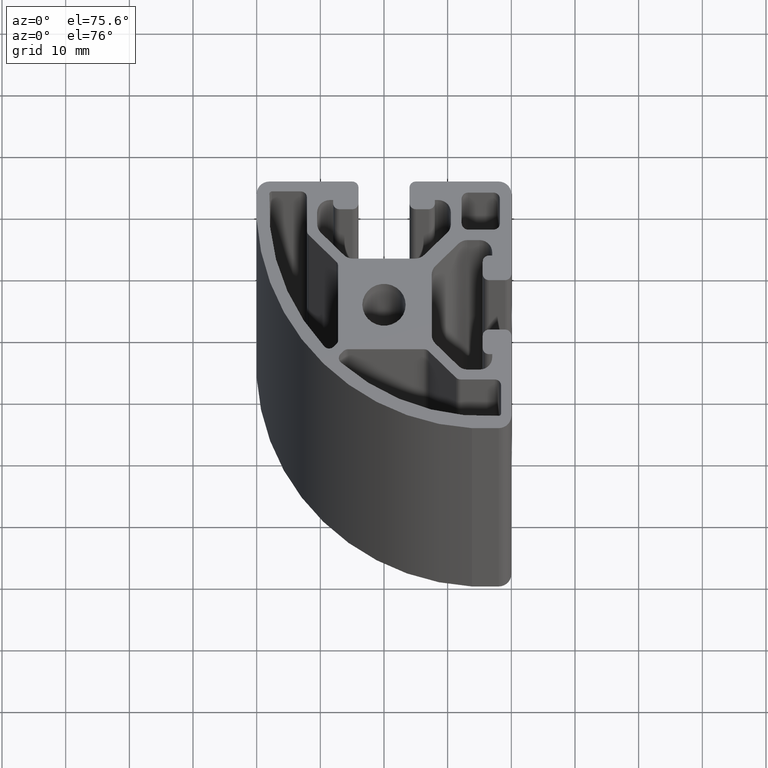
[diagram: clean part render]
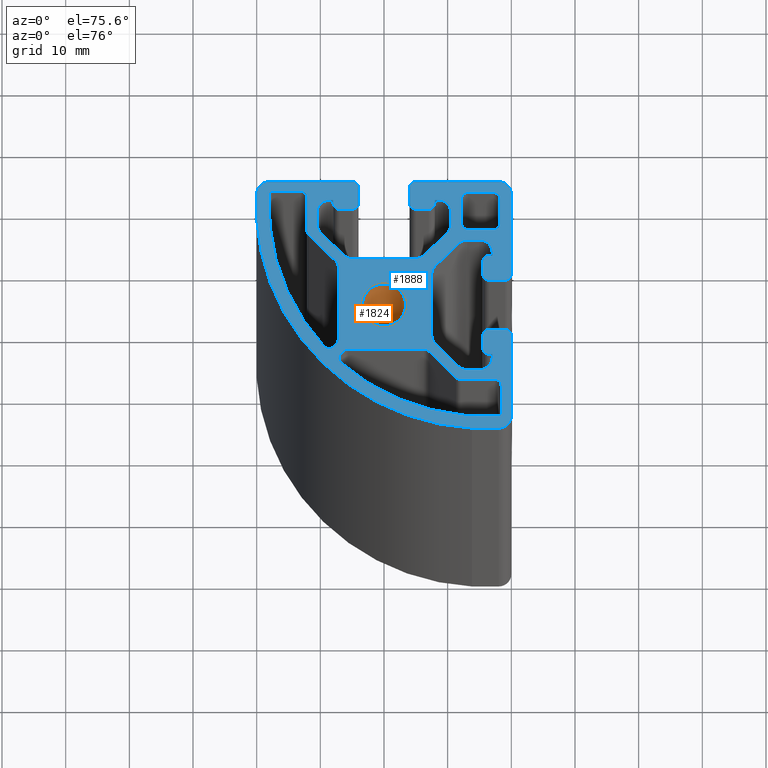
[diagram: same view with the hole feature highlighted: cylindrical wall and planar end face, labeled with their STEP entity ids]
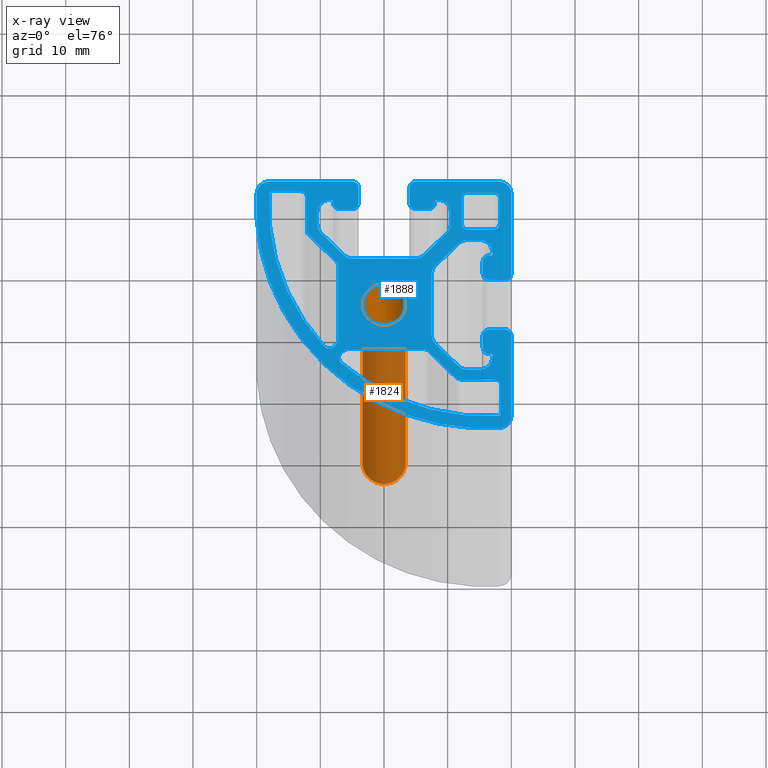
[diagram: x-ray of the same camera — body ghosted, the hole faces saturated]
A machine part, auxiliary view. The highlighted faces form one hole feature of diameter 6.8 mm: the cylindrical wall (entity #1824, orange) and its adjacent planar end face (entity #1888, blue) — they share a circular edge in the B-rep.
The next image is the same camera in x-ray (body ghosted, the hole faces saturated) — the bore reads through the body.
Wall:
#15=FACE_BOUND('',#285,.T.);
#52=CIRCLE('',#1950,3.4);
#53=CIRCLE('',#1951,3.4);
#132=CYLINDRICAL_SURFACE('',#1949,3.4);
#189=FACE_OUTER_BOUND('',#284,.T.);
#284=EDGE_LOOP('',(#1292));
#285=EDGE_LOOP('',(#1293));
#780=VERTEX_POINT('',#2796);
#781=VERTEX_POINT('',#2798);
#990=EDGE_CURVE('',#780,#780,#52,.T.);
#991=EDGE_CURVE('',#781,#781,#53,.T.);
#1292=ORIENTED_EDGE('',*,*,#990,.F.);
#1293=ORIENTED_EDGE('',*,*,#991,.F.);
#1824=ADVANCED_FACE('',(#189,#15),#132,.F.);
#1949=AXIS2_PLACEMENT_3D('',#2795,#2236,#2237);
#1950=AXIS2_PLACEMENT_3D('',#2797,#2238,#2239);
#1951=AXIS2_PLACEMENT_3D('',#2799,#2240,#2241);
#2236=DIRECTION('center_axis',(0.,0.,1.));
#2237=DIRECTION('ref_axis',(-1.,0.,0.));
#2238=DIRECTION('center_axis',(0.,0.,-1.));
#2239=DIRECTION('ref_axis',(-1.,0.,0.));
#2240=DIRECTION('center_axis',(0.,0.,1.));
#2241=DIRECTION('ref_axis',(-1.,0.,0.));
#2795=CARTESIAN_POINT('Origin',(0.,0.,0.));
#2796=CARTESIAN_POINT('',(3.4,-4.163799117101E-16,100.));
#2797=CARTESIAN_POINT('Origin',(0.,0.,100.));
#2798=CARTESIAN_POINT('',(3.4,4.163799117101E-16,0.));
#2799=CARTESIAN_POINT('Origin',(0.,0.,0.));
End face:
#16=FACE_BOUND('',#350,.T.);
#17=FACE_BOUND('',#351,.T.);
#18=FACE_BOUND('',#352,.T.);
#19=FACE_BOUND('',#353,.T.);
#24=CIRCLE('',#1899,1.);
#26=CIRCLE('',#1903,1.);
#28=CIRCLE('',#1907,0.400000000000001);
#30=CIRCLE('',#1910,34.);
#32=CIRCLE('',#1913,1.);
#34=CIRCLE('',#1917,1.);
#36=CIRCLE('',#1921,1.00000000000001);
#38=CIRCLE('',#1925,0.999999999999993);
#40=CIRCLE('',#1929,1.);
#42=CIRCLE('',#1933,1.);
#44=CIRCLE('',#1936,34.0000000000857);
#46=CIRCLE('',#1939,0.4);
#48=CIRCLE('',#1943,1.);
#50=CIRCLE('',#1947,1.);
#52=CIRCLE('',#1950,3.4);
#55=CIRCLE('',#1954,36.);
#56=CIRCLE('',#1956,1.);
#58=CIRCLE('',#1959,1.);
#60=CIRCLE('',#1963,1.);
#62=CIRCLE('',#1967,1.);
#64=CIRCLE('',#1972,1.99999600810224);
#66=CIRCLE('',#1976,1.99999600810224);
#68=CIRCLE('',#1980,1.99999600810224);
#70=CIRCLE('',#1984,1.99999600810224);
#72=CIRCLE('',#1988,1.99999600810225);
#74=CIRCLE('',#1992,1.99999600810224);
#76=CIRCLE('',#1997,1.);
#78=CIRCLE('',#2001,1.);
#80=CIRCLE('',#2005,1.);
#82=CIRCLE('',#2009,1.);
#84=CIRCLE('',#2013,1.);
#86=CIRCLE('',#2018,1.99999600810224);
#88=CIRCLE('',#2022,1.99999600810224);
#90=CIRCLE('',#2026,1.99999600810225);
#92=CIRCLE('',#2030,1.99999600810224);
#94=CIRCLE('',#2034,1.99999600810225);
#96=CIRCLE('',#2038,1.99999600810225);
#98=CIRCLE('',#2043,1.);
#100=CIRCLE('',#2047,1.);
#102=CIRCLE('',#2051,1.);
#104=CIRCLE('',#2055,1.);
#106=CIRCLE('',#2059,1.);
#108=CIRCLE('',#2063,1.);
#110=CIRCLE('',#2067,1.);
#112=CIRCLE('',#2074,2.);
#113=CIRCLE('',#2075,2.);
#114=CIRCLE('',#2076,2.);
#253=FACE_OUTER_BOUND('',#349,.T.);
#349=EDGE_LOOP('',(#1546,#1547,#1548,#1549,#1550,#1551,#1552,#1553,#1554,
#1555,#1556,#1557,#1558,#1559,#1560,#1561,#1562,#1563,#1564,#1565,#1566,
#1567,#1568,#1569,#1570,#1571,#1572,#1573,#1574,#1575,#1576,#1577,#1578,
#1579,#1580,#1581,#1582,#1583,#1584,#1585,#1586,#1587,#1588,#1589,#1590,
#1591,#1592,#1593,#1594,#1595,#1596,#1597,#1598,#1599,#1600,#1601,#1602,
#1603,#1604,#1605));
#350=EDGE_LOOP('',(#1606,#1607,#1608,#1609,#1610,#1611,#1612,#1613));
#351=EDGE_LOOP('',(#1614));
#352=EDGE_LOOP('',(#1615,#1616,#1617,#1618,#1619,#1620,#1621,#1622,#1623,
#1624,#1625,#1626));
#353=EDGE_LOOP('',(#1627,#1628,#1629,#1630,#1631,#1632,#1633,#1634,#1635,
#1636,#1637,#1638));
#364=LINE('',#2654,#548);
#369=LINE('',#2668,#553);
#373=LINE('',#2680,#557);
#379=LINE('',#2704,#563);
#383=LINE('',#2716,#567);
#386=LINE('',#2726,#570);
#391=LINE('',#2740,#575);
#395=LINE('',#2752,#579);
#401=LINE('',#2776,#585);
#405=LINE('',#2788,#589);
#414=LINE('',#2829,#598);
#418=LINE('',#2841,#602);
#422=LINE('',#2853,#606);
#425=LINE('',#2859,#609);
#429=LINE('',#2871,#613);
#433=LINE('',#2883,#617);
#437=LINE('',#2895,#621);
#441=LINE('',#2907,#625);
#445=LINE('',#2919,#629);
#449=LINE('',#2931,#633);
#452=LINE('',#2937,#636);
#456=LINE('',#2949,#640);
#460=LINE('',#2960,#644);
#464=LINE('',#2973,#648);
#468=LINE('',#2985,#652);
#472=LINE('',#2997,#656);
#475=LINE('',#3003,#659);
#479=LINE('',#3015,#663);
#483=LINE('',#3027,#667);
#487=LINE('',#3039,#671);
#491=LINE('',#3051,#675);
#495=LINE('',#3063,#679);
#499=LINE('',#3075,#683);
#502=LINE('',#3081,#686);
#506=LINE('',#3093,#690);
#510=LINE('',#3105,#694);
#514=LINE('',#3118,#698);
#519=LINE('',#3132,#703);
#523=LINE('',#3144,#707);
#527=LINE('',#3156,#711);
#530=LINE('',#3165,#714);
#535=LINE('',#3174,#719);
#538=LINE('',#3180,#722);
#539=LINE('',#3183,#723);
#542=LINE('',#3189,#726);
#543=LINE('',#3192,#727);
#548=VECTOR('',#2090,6.10121933088198);
#553=VECTOR('',#2103,5.38076118445748);
#557=VECTOR('',#2115,4.499253328166);
#563=VECTOR('',#2141,0.615466326185701);
#567=VECTOR('',#2153,11.9452272785248);
#570=VECTOR('',#2164,6.10121933088197);
#575=VECTOR('',#2177,11.9452272785248);
#579=VECTOR('',#2189,0.615466326185706);
#585=VECTOR('',#2215,4.49925332816598);
#589=VECTOR('',#2227,5.38076118445749);
#598=VECTOR('',#2268,2.5);
#602=VECTOR('',#2280,2.);
#606=VECTOR('',#2292,0.5);
#609=VECTOR('',#2297,0.500003991897749);
#613=VECTOR('',#2309,1.9038115676834);
#617=VECTOR('',#2321,5.08578974462328);
#621=VECTOR('',#2333,9.80761515157127);
#625=VECTOR('',#2345,5.08578974462329);
#629=VECTOR('',#2357,1.9038115676834);
#633=VECTOR('',#2369,0.500003991897748);
#636=VECTOR('',#2374,0.499999999999987);
#640=VECTOR('',#2386,2.00000000000001);
#644=VECTOR('',#2398,2.49999999999999);
#648=VECTOR('',#2410,2.5);
#652=VECTOR('',#2422,2.);
#656=VECTOR('',#2434,0.499999999999994);
#659=VECTOR('',#2439,0.500003991897758);
#663=VECTOR('',#2451,1.90381156768339);
#667=VECTOR('',#2463,5.08578974462329);
#671=VECTOR('',#2475,9.80761515157127);
#675=VECTOR('',#2487,5.08578974462328);
#679=VECTOR('',#2499,1.90381156768339);
#683=VECTOR('',#2511,0.500008218613461);
#686=VECTOR('',#2516,0.499999751365252);
#690=VECTOR('',#2528,2.00000000000001);
#694=VECTOR('',#2540,2.5);
#698=VECTOR('',#2552,4.);
#703=VECTOR('',#2565,4.00000000000001);
#707=VECTOR('',#2577,4.);
#711=VECTOR('',#2589,4.);
#714=VECTOR('',#2600,4.18510259352965);
#719=VECTOR('',#2607,12.9999960154547);
#722=VECTOR('',#2612,13.0000039845453);
#723=VECTOR('',#2615,13.0000002421704);
#726=VECTOR('',#2620,4.18503525331706);
#727=VECTOR('',#2623,13.0000039845452);
#732=VERTEX_POINT('',#2652);
#733=VERTEX_POINT('',#2653);
#736=VERTEX_POINT('',#2661);
#738=VERTEX_POINT('',#2667);
#740=VERTEX_POINT('',#2673);
#742=VERTEX_POINT('',#2679);
#744=VERTEX_POINT('',#2685);
#746=VERTEX_POINT('',#2691);
#748=VERTEX_POINT('',#2697);
#750=VERTEX_POINT('',#2703);
#752=VERTEX_POINT('',#2709);
#754=VERTEX_POINT('',#2715);
#756=VERTEX_POINT('',#2724);
#757=VERTEX_POINT('',#2725);
#760=VERTEX_POINT('',#2733);
#762=VERTEX_POINT('',#2739);
#764=VERTEX_POINT('',#2745);
#766=VERTEX_POINT('',#2751);
#768=VERTEX_POINT('',#2757);
#770=VERTEX_POINT('',#2763);
#772=VERTEX_POINT('',#2769);
#774=VERTEX_POINT('',#2775);
#776=VERTEX_POINT('',#2781);
#778=VERTEX_POINT('',#2787);
#780=VERTEX_POINT('',#2796);
#783=VERTEX_POINT('',#2802);
#785=VERTEX_POINT('',#2806);
#786=VERTEX_POINT('',#2810);
#787=VERTEX_POINT('',#2811);
#790=VERTEX_POINT('',#2819);
#791=VERTEX_POINT('',#2820);
#794=VERTEX_POINT('',#2828);
#796=VERTEX_POINT('',#2834);
#798=VERTEX_POINT('',#2840);
#800=VERTEX_POINT('',#2846);
#802=VERTEX_POINT('',#2852);
#804=VERTEX_POINT('',#2858);
#806=VERTEX_POINT('',#2864);
#808=VERTEX_POINT('',#2870);
#810=VERTEX_POINT('',#2876);
#812=VERTEX_POINT('',#2882);
#814=VERTEX_POINT('',#2888);
#816=VERTEX_POINT('',#2894);
#818=VERTEX_POINT('',#2900);
#820=VERTEX_POINT('',#2906);
#822=VERTEX_POINT('',#2912);
#824=VERTEX_POINT('',#2918);
#826=VERTEX_POINT('',#2924);
#828=VERTEX_POINT('',#2930);
#830=VERTEX_POINT('',#2936);
#832=VERTEX_POINT('',#2942);
#834=VERTEX_POINT('',#2948);
#836=VERTEX_POINT('',#2954);
#838=VERTEX_POINT('',#2963);
#839=VERTEX_POINT('',#2964);
#842=VERTEX_POINT('',#2972);
#844=VERTEX_POINT('',#2978);
#846=VERTEX_POINT('',#2984);
#848=VERTEX_POINT('',#2990);
#850=VERTEX_POINT('',#2996);
#852=VERTEX_POINT('',#3002);
#854=VERTEX_POINT('',#3008);
#856=VERTEX_POINT('',#3014);
#858=VERTEX_POINT('',#3020);
#860=VERTEX_POINT('',#3026);
#862=VERTEX_POINT('',#3032);
#864=VERTEX_POINT('',#3038);
#866=VERTEX_POINT('',#3044);
#868=VERTEX_POINT('',#3050);
#870=VERTEX_POINT('',#3056);
#872=VERTEX_POINT('',#3062);
#874=VERTEX_POINT('',#3068);
#876=VERTEX_POINT('',#3074);
#878=VERTEX_POINT('',#3080);
#880=VERTEX_POINT('',#3086);
#882=VERTEX_POINT('',#3092);
#884=VERTEX_POINT('',#3098);
#886=VERTEX_POINT('',#3104);
#888=VERTEX_POINT('',#3110);
#890=VERTEX_POINT('',#3116);
#891=VERTEX_POINT('',#3117);
#894=VERTEX_POINT('',#3125);
#896=VERTEX_POINT('',#3131);
#898=VERTEX_POINT('',#3137);
#900=VERTEX_POINT('',#3143);
#902=VERTEX_POINT('',#3149);
#904=VERTEX_POINT('',#3155);
#906=VERTEX_POINT('',#3164);
#909=VERTEX_POINT('',#3172);
#911=VERTEX_POINT('',#3178);
#912=VERTEX_POINT('',#3182);
#914=VERTEX_POINT('',#3188);
#915=VERTEX_POINT('',#3190);
#918=EDGE_CURVE('',#732,#733,#364,.T.);
#922=EDGE_CURVE('',#733,#736,#24,.T.);
#925=EDGE_CURVE('',#736,#738,#369,.T.);
#928=EDGE_CURVE('',#738,#740,#26,.T.);
#931=EDGE_CURVE('',#740,#742,#373,.T.);
#934=EDGE_CURVE('',#742,#744,#28,.T.);
#937=EDGE_CURVE('',#744,#746,#30,.T.);
#940=EDGE_CURVE('',#746,#748,#32,.T.);
#943=EDGE_CURVE('',#748,#750,#379,.T.);
#946=EDGE_CURVE('',#750,#752,#34,.T.);
#949=EDGE_CURVE('',#752,#754,#383,.T.);
#952=EDGE_CURVE('',#754,#732,#36,.T.);
#954=EDGE_CURVE('',#756,#757,#386,.T.);
#958=EDGE_CURVE('',#757,#760,#38,.T.);
#961=EDGE_CURVE('',#760,#762,#391,.T.);
#964=EDGE_CURVE('',#762,#764,#40,.T.);
#967=EDGE_CURVE('',#764,#766,#395,.T.);
#970=EDGE_CURVE('',#766,#768,#42,.T.);
#973=EDGE_CURVE('',#768,#770,#44,.T.);
#976=EDGE_CURVE('',#770,#772,#46,.T.);
#979=EDGE_CURVE('',#772,#774,#401,.T.);
#982=EDGE_CURVE('',#774,#776,#48,.T.);
#985=EDGE_CURVE('',#776,#778,#405,.T.);
#988=EDGE_CURVE('',#778,#756,#50,.T.);
#990=EDGE_CURVE('',#780,#780,#52,.T.);
#995=EDGE_CURVE('',#783,#785,#55,.T.);
#996=EDGE_CURVE('',#786,#787,#56,.T.);
#1000=EDGE_CURVE('',#790,#791,#58,.T.);
#1004=EDGE_CURVE('',#794,#790,#414,.T.);
#1007=EDGE_CURVE('',#796,#794,#60,.T.);
#1010=EDGE_CURVE('',#798,#796,#418,.T.);
#1013=EDGE_CURVE('',#800,#798,#62,.T.);
#1016=EDGE_CURVE('',#802,#800,#422,.T.);
#1019=EDGE_CURVE('',#804,#802,#425,.T.);
#1022=EDGE_CURVE('',#806,#804,#64,.T.);
#1025=EDGE_CURVE('',#808,#806,#429,.T.);
#1028=EDGE_CURVE('',#810,#808,#66,.T.);
#1031=EDGE_CURVE('',#812,#810,#433,.T.);
#1034=EDGE_CURVE('',#814,#812,#68,.T.);
#1037=EDGE_CURVE('',#816,#814,#437,.T.);
#1040=EDGE_CURVE('',#818,#816,#70,.T.);
#1043=EDGE_CURVE('',#820,#818,#441,.T.);
#1046=EDGE_CURVE('',#822,#820,#72,.T.);
#1049=EDGE_CURVE('',#824,#822,#445,.T.);
#1052=EDGE_CURVE('',#826,#824,#74,.T.);
#1055=EDGE_CURVE('',#828,#826,#449,.T.);
#1058=EDGE_CURVE('',#830,#828,#452,.T.);
#1061=EDGE_CURVE('',#832,#830,#76,.T.);
#1064=EDGE_CURVE('',#834,#832,#456,.T.);
#1067=EDGE_CURVE('',#836,#834,#78,.T.);
#1070=EDGE_CURVE('',#787,#836,#460,.T.);
#1072=EDGE_CURVE('',#838,#839,#80,.T.);
#1076=EDGE_CURVE('',#839,#842,#464,.T.);
#1079=EDGE_CURVE('',#842,#844,#82,.T.);
#1082=EDGE_CURVE('',#844,#846,#468,.T.);
#1085=EDGE_CURVE('',#846,#848,#84,.T.);
#1088=EDGE_CURVE('',#848,#850,#472,.T.);
#1091=EDGE_CURVE('',#850,#852,#475,.T.);
#1094=EDGE_CURVE('',#852,#854,#86,.T.);
#1097=EDGE_CURVE('',#854,#856,#479,.T.);
#1100=EDGE_CURVE('',#856,#858,#88,.T.);
#1103=EDGE_CURVE('',#858,#860,#483,.T.);
#1106=EDGE_CURVE('',#860,#862,#90,.T.);
#1109=EDGE_CURVE('',#862,#864,#487,.T.);
#1112=EDGE_CURVE('',#864,#866,#92,.T.);
#1115=EDGE_CURVE('',#866,#868,#491,.T.);
#1118=EDGE_CURVE('',#868,#870,#94,.T.);
#1121=EDGE_CURVE('',#870,#872,#495,.T.);
#1124=EDGE_CURVE('',#872,#874,#96,.T.);
#1127=EDGE_CURVE('',#874,#876,#499,.T.);
#1130=EDGE_CURVE('',#876,#878,#502,.T.);
#1133=EDGE_CURVE('',#878,#880,#98,.T.);
#1136=EDGE_CURVE('',#880,#882,#506,.T.);
#1139=EDGE_CURVE('',#882,#884,#100,.T.);
#1142=EDGE_CURVE('',#884,#886,#510,.T.);
#1145=EDGE_CURVE('',#886,#888,#102,.T.);
#1148=EDGE_CURVE('',#890,#891,#514,.T.);
#1152=EDGE_CURVE('',#894,#890,#104,.T.);
#1155=EDGE_CURVE('',#896,#894,#519,.T.);
#1158=EDGE_CURVE('',#898,#896,#106,.T.);
#1161=EDGE_CURVE('',#900,#898,#523,.T.);
#1164=EDGE_CURVE('',#902,#900,#108,.T.);
#1167=EDGE_CURVE('',#904,#902,#527,.T.);
#1170=EDGE_CURVE('',#891,#904,#110,.T.);
#1172=EDGE_CURVE('',#783,#906,#530,.T.);
#1177=EDGE_CURVE('',#909,#791,#535,.T.);
#1180=EDGE_CURVE('',#911,#888,#538,.T.);
#1181=EDGE_CURVE('',#838,#912,#539,.T.);
#1184=EDGE_CURVE('',#914,#785,#542,.T.);
#1185=EDGE_CURVE('',#915,#914,#112,.T.);
#1186=EDGE_CURVE('',#786,#915,#543,.T.);
#1187=EDGE_CURVE('',#912,#909,#113,.T.);
#1188=EDGE_CURVE('',#906,#911,#114,.T.);
#1546=ORIENTED_EDGE('',*,*,#995,.T.);
#1547=ORIENTED_EDGE('',*,*,#1184,.F.);
#1548=ORIENTED_EDGE('',*,*,#1185,.F.);
#1549=ORIENTED_EDGE('',*,*,#1186,.F.);
#1550=ORIENTED_EDGE('',*,*,#996,.T.);
#1551=ORIENTED_EDGE('',*,*,#1070,.T.);
#1552=ORIENTED_EDGE('',*,*,#1067,.T.);
#1553=ORIENTED_EDGE('',*,*,#1064,.T.);
#1554=ORIENTED_EDGE('',*,*,#1061,.T.);
#1555=ORIENTED_EDGE('',*,*,#1058,.T.);
#1556=ORIENTED_EDGE('',*,*,#1055,.T.);
#1557=ORIENTED_EDGE('',*,*,#1052,.T.);
#1558=ORIENTED_EDGE('',*,*,#1049,.T.);
#1559=ORIENTED_EDGE('',*,*,#1046,.T.);
#1560=ORIENTED_EDGE('',*,*,#1043,.T.);
#1561=ORIENTED_EDGE('',*,*,#1040,.T.);
#1562=ORIENTED_EDGE('',*,*,#1037,.T.);
#1563=ORIENTED_EDGE('',*,*,#1034,.T.);
#1564=ORIENTED_EDGE('',*,*,#1031,.T.);
#1565=ORIENTED_EDGE('',*,*,#1028,.T.);
#1566=ORIENTED_EDGE('',*,*,#1025,.T.);
#1567=ORIENTED_EDGE('',*,*,#1022,.T.);
#1568=ORIENTED_EDGE('',*,*,#1019,.T.);
#1569=ORIENTED_EDGE('',*,*,#1016,.T.);
#1570=ORIENTED_EDGE('',*,*,#1013,.T.);
#1571=ORIENTED_EDGE('',*,*,#1010,.T.);
#1572=ORIENTED_EDGE('',*,*,#1007,.T.);
#1573=ORIENTED_EDGE('',*,*,#1004,.T.);
#1574=ORIENTED_EDGE('',*,*,#1000,.T.);
#1575=ORIENTED_EDGE('',*,*,#1177,.F.);
#1576=ORIENTED_EDGE('',*,*,#1187,.F.);
#1577=ORIENTED_EDGE('',*,*,#1181,.F.);
#1578=ORIENTED_EDGE('',*,*,#1072,.T.);
#1579=ORIENTED_EDGE('',*,*,#1076,.T.);
#1580=ORIENTED_EDGE('',*,*,#1079,.T.);
#1581=ORIENTED_EDGE('',*,*,#1082,.T.);
#1582=ORIENTED_EDGE('',*,*,#1085,.T.);
#1583=ORIENTED_EDGE('',*,*,#1088,.T.);
#1584=ORIENTED_EDGE('',*,*,#1091,.T.);
#1585=ORIENTED_EDGE('',*,*,#1094,.T.);
#1586=ORIENTED_EDGE('',*,*,#1097,.T.);
#1587=ORIENTED_EDGE('',*,*,#1100,.T.);
#1588=ORIENTED_EDGE('',*,*,#1103,.T.);
#1589=ORIENTED_EDGE('',*,*,#1106,.T.);
#1590=ORIENTED_EDGE('',*,*,#1109,.T.);
#1591=ORIENTED_EDGE('',*,*,#1112,.T.);
#1592=ORIENTED_EDGE('',*,*,#1115,.T.);
#1593=ORIENTED_EDGE('',*,*,#1118,.T.);
#1594=ORIENTED_EDGE('',*,*,#1121,.T.);
#1595=ORIENTED_EDGE('',*,*,#1124,.T.);
#1596=ORIENTED_EDGE('',*,*,#1127,.T.);
#1597=ORIENTED_EDGE('',*,*,#1130,.T.);
#1598=ORIENTED_EDGE('',*,*,#1133,.T.);
#1599=ORIENTED_EDGE('',*,*,#1136,.T.);
#1600=ORIENTED_EDGE('',*,*,#1139,.T.);
#1601=ORIENTED_EDGE('',*,*,#1142,.T.);
#1602=ORIENTED_EDGE('',*,*,#1145,.T.);
#1603=ORIENTED_EDGE('',*,*,#1180,.F.);
#1604=ORIENTED_EDGE('',*,*,#1188,.F.);
#1605=ORIENTED_EDGE('',*,*,#1172,.F.);
#1606=ORIENTED_EDGE('',*,*,#1148,.T.);
#1607=ORIENTED_EDGE('',*,*,#1170,.T.);
#1608=ORIENTED_EDGE('',*,*,#1167,.T.);
#1609=ORIENTED_EDGE('',*,*,#1164,.T.);
#1610=ORIENTED_EDGE('',*,*,#1161,.T.);
#1611=ORIENTED_EDGE('',*,*,#1158,.T.);
#1612=ORIENTED_EDGE('',*,*,#1155,.T.);
#1613=ORIENTED_EDGE('',*,*,#1152,.T.);
#1614=ORIENTED_EDGE('',*,*,#990,.T.);
#1615=ORIENTED_EDGE('',*,*,#954,.T.);
#1616=ORIENTED_EDGE('',*,*,#958,.T.);
#1617=ORIENTED_EDGE('',*,*,#961,.T.);
#1618=ORIENTED_EDGE('',*,*,#964,.T.);
#1619=ORIENTED_EDGE('',*,*,#967,.T.);
#1620=ORIENTED_EDGE('',*,*,#970,.T.);
#1621=ORIENTED_EDGE('',*,*,#973,.T.);
#1622=ORIENTED_EDGE('',*,*,#976,.T.);
#1623=ORIENTED_EDGE('',*,*,#979,.T.);
#1624=ORIENTED_EDGE('',*,*,#982,.T.);
#1625=ORIENTED_EDGE('',*,*,#985,.T.);
#1626=ORIENTED_EDGE('',*,*,#988,.T.);
#1627=ORIENTED_EDGE('',*,*,#918,.T.);
#1628=ORIENTED_EDGE('',*,*,#922,.T.);
#1629=ORIENTED_EDGE('',*,*,#925,.T.);
#1630=ORIENTED_EDGE('',*,*,#928,.T.);
#1631=ORIENTED_EDGE('',*,*,#931,.T.);
#1632=ORIENTED_EDGE('',*,*,#934,.T.);
#1633=ORIENTED_EDGE('',*,*,#937,.T.);
#1634=ORIENTED_EDGE('',*,*,#940,.T.);
#1635=ORIENTED_EDGE('',*,*,#943,.T.);
#1636=ORIENTED_EDGE('',*,*,#946,.T.);
#1637=ORIENTED_EDGE('',*,*,#949,.T.);
#1638=ORIENTED_EDGE('',*,*,#952,.T.);
#1796=PLANE('',#2073);
#1888=ADVANCED_FACE('',(#253,#16,#17,#18,#19),#1796,.T.);
#1899=AXIS2_PLACEMENT_3D('',#2662,#2096,#2097);
#1903=AXIS2_PLACEMENT_3D('',#2674,#2108,#2109);
#1907=AXIS2_PLACEMENT_3D('',#2686,#2120,#2121);
#1910=AXIS2_PLACEMENT_3D('',#2692,#2127,#2128);
#1913=AXIS2_PLACEMENT_3D('',#2698,#2134,#2135);
#1917=AXIS2_PLACEMENT_3D('',#2710,#2146,#2147);
#1921=AXIS2_PLACEMENT_3D('',#2721,#2158,#2159);
#1925=AXIS2_PLACEMENT_3D('',#2734,#2170,#2171);
#1929=AXIS2_PLACEMENT_3D('',#2746,#2182,#2183);
#1933=AXIS2_PLACEMENT_3D('',#2758,#2194,#2195);
#1936=AXIS2_PLACEMENT_3D('',#2764,#2201,#2202);
#1939=AXIS2_PLACEMENT_3D('',#2770,#2208,#2209);
#1943=AXIS2_PLACEMENT_3D('',#2782,#2220,#2221);
#1947=AXIS2_PLACEMENT_3D('',#2793,#2232,#2233);
#1950=AXIS2_PLACEMENT_3D('',#2797,#2238,#2239);
#1954=AXIS2_PLACEMENT_3D('',#2808,#2248,#2249);
#1956=AXIS2_PLACEMENT_3D('',#2812,#2252,#2253);
#1959=AXIS2_PLACEMENT_3D('',#2821,#2260,#2261);
#1963=AXIS2_PLACEMENT_3D('',#2835,#2273,#2274);
#1967=AXIS2_PLACEMENT_3D('',#2847,#2285,#2286);
#1972=AXIS2_PLACEMENT_3D('',#2865,#2302,#2303);
#1976=AXIS2_PLACEMENT_3D('',#2877,#2314,#2315);
#1980=AXIS2_PLACEMENT_3D('',#2889,#2326,#2327);
#1984=AXIS2_PLACEMENT_3D('',#2901,#2338,#2339);
#1988=AXIS2_PLACEMENT_3D('',#2913,#2350,#2351);
#1992=AXIS2_PLACEMENT_3D('',#2925,#2362,#2363);
#1997=AXIS2_PLACEMENT_3D('',#2943,#2379,#2380);
#2001=AXIS2_PLACEMENT_3D('',#2955,#2391,#2392);
#2005=AXIS2_PLACEMENT_3D('',#2965,#2402,#2403);
#2009=AXIS2_PLACEMENT_3D('',#2979,#2415,#2416);
#2013=AXIS2_PLACEMENT_3D('',#2991,#2427,#2428);
#2018=AXIS2_PLACEMENT_3D('',#3009,#2444,#2445);
#2022=AXIS2_PLACEMENT_3D('',#3021,#2456,#2457);
#2026=AXIS2_PLACEMENT_3D('',#3033,#2468,#2469);
#2030=AXIS2_PLACEMENT_3D('',#3045,#2480,#2481);
#2034=AXIS2_PLACEMENT_3D('',#3057,#2492,#2493);
#2038=AXIS2_PLACEMENT_3D('',#3069,#2504,#2505);
#2043=AXIS2_PLACEMENT_3D('',#3087,#2521,#2522);
#2047=AXIS2_PLACEMENT_3D('',#3099,#2533,#2534);
#2051=AXIS2_PLACEMENT_3D('',#3111,#2545,#2546);
#2055=AXIS2_PLACEMENT_3D('',#3126,#2558,#2559);
#2059=AXIS2_PLACEMENT_3D('',#3138,#2570,#2571);
#2063=AXIS2_PLACEMENT_3D('',#3150,#2582,#2583);
#2067=AXIS2_PLACEMENT_3D('',#3161,#2594,#2595);
#2073=AXIS2_PLACEMENT_3D('',#3187,#2618,#2619);
#2074=AXIS2_PLACEMENT_3D('',#3191,#2621,#2622);
#2075=AXIS2_PLACEMENT_3D('',#3193,#2624,#2625);
#2076=AXIS2_PLACEMENT_3D('',#3194,#2626,#2627);
#2090=DIRECTION('',(0.707106781186548,-0.707106781186547,0.));
#2096=DIRECTION('center_axis',(0.,0.,1.));
#2097=DIRECTION('ref_axis',(0.70710678118654,0.707106781186555,0.));
#2103=DIRECTION('',(1.,-3.30131142882037E-15,0.));
#2108=DIRECTION('center_axis',(0.,0.,-1.));
#2109=DIRECTION('ref_axis',(1.,6.66133814775092E-15,0.));
#2115=DIRECTION('',(9.87028685559884E-16,-1.,0.));
#2120=DIRECTION('center_axis',(0.,0.,-1.));
#2121=DIRECTION('ref_axis',(0.0613875833322587,-0.998114003815509,0.));
#2127=DIRECTION('center_axis',(0.,0.,-1.));
#2128=DIRECTION('ref_axis',(-0.667484642442465,-0.744623564026452,0.));
#2134=DIRECTION('center_axis',(0.,0.,-1.));
#2135=DIRECTION('ref_axis',(-0.707106781186563,0.707106781186533,0.));
#2141=DIRECTION('',(0.707106781186544,0.707106781186551,0.));
#2146=DIRECTION('center_axis',(0.,0.,-1.));
#2147=DIRECTION('ref_axis',(-2.22044604925031E-15,1.,0.));
#2153=DIRECTION('',(1.,-2.78828438858035E-16,0.));
#2158=DIRECTION('center_axis',(0.,0.,-1.));
#2159=DIRECTION('ref_axis',(0.707106781186548,0.707106781186548,0.));
#2164=DIRECTION('',(0.707106781186548,-0.707106781186547,0.));
#2170=DIRECTION('center_axis',(0.,0.,-1.));
#2171=DIRECTION('ref_axis',(-1.,7.77156117237614E-15,0.));
#2177=DIRECTION('',(0.,-1.,0.));
#2182=DIRECTION('center_axis',(0.,0.,-1.));
#2183=DIRECTION('ref_axis',(-0.707106781186548,0.707106781186548,0.));
#2189=DIRECTION('',(-0.707106781186549,-0.707106781186546,0.));
#2194=DIRECTION('center_axis',(0.,0.,-1.));
#2195=DIRECTION('ref_axis',(0.744623564026449,0.667484642442468,0.));
#2201=DIRECTION('center_axis',(0.,0.,-1.));
#2202=DIRECTION('ref_axis',(0.998114003815571,-0.0613875833312433,0.));
#2208=DIRECTION('center_axis',(0.,0.,-1.));
#2209=DIRECTION('ref_axis',(-2.77555756156289E-14,-1.,0.));
#2215=DIRECTION('',(1.,-3.94811474223955E-15,0.));
#2220=DIRECTION('center_axis',(0.,0.,-1.));
#2221=DIRECTION('ref_axis',(-1.,-6.66133814775093E-15,0.));
#2227=DIRECTION('',(8.2532785720509E-16,-1.,0.));
#2232=DIRECTION('center_axis',(0.,0.,1.));
#2233=DIRECTION('ref_axis',(-1.,-1.33226762955019E-14,0.));
#2238=DIRECTION('center_axis',(0.,0.,-1.));
#2239=DIRECTION('ref_axis',(-1.,0.,0.));
#2248=DIRECTION('center_axis',(0.,0.,1.));
#2249=DIRECTION('ref_axis',(0.998158153158456,-0.0606654867556555,0.));
#2252=DIRECTION('center_axis',(0.,0.,1.));
#2253=DIRECTION('ref_axis',(-1.,3.27515792264426E-14,0.));
#2260=DIRECTION('center_axis',(0.,0.,1.));
#2261=DIRECTION('ref_axis',(1.77635683940025E-14,1.,0.));
#2268=DIRECTION('',(1.,-4.44089209850063E-16,0.));
#2273=DIRECTION('center_axis',(0.,0.,1.));
#2274=DIRECTION('ref_axis',(1.,-7.77156117237609E-15,0.));
#2280=DIRECTION('',(-2.22044604925032E-15,-1.,0.));
#2285=DIRECTION('center_axis',(0.,0.,1.));
#2286=DIRECTION('ref_axis',(2.22044604925033E-15,-1.,0.));
#2292=DIRECTION('',(-1.,-1.55431223447522E-14,0.));
#2297=DIRECTION('',(-4.44085664360934E-15,-1.,0.));
#2302=DIRECTION('center_axis',(0.,0.,-1.));
#2303=DIRECTION('ref_axis',(1.,-3.33067572173394E-15,0.));
#2309=DIRECTION('',(1.,0.,0.));
#2314=DIRECTION('center_axis',(0.,0.,-1.));
#2315=DIRECTION('ref_axis',(2.22045048115596E-15,1.,0.));
#2321=DIRECTION('',(0.707106781186547,0.707106781186548,0.));
#2326=DIRECTION('center_axis',(0.,0.,-1.));
#2327=DIRECTION('ref_axis',(-0.707106781186546,0.707106781186549,0.));
#2333=DIRECTION('',(1.92440171509013E-15,1.,0.));
#2338=DIRECTION('center_axis',(0.,0.,-1.));
#2339=DIRECTION('ref_axis',(-1.,-3.05311941158944E-15,0.));
#2345=DIRECTION('',(-0.707106781186548,0.707106781186547,0.));
#2350=DIRECTION('center_axis',(0.,0.,-1.));
#2351=DIRECTION('ref_axis',(-0.707106781186544,-0.707106781186551,0.));
#2357=DIRECTION('',(-1.,-2.33263216480211E-15,0.));
#2362=DIRECTION('center_axis',(0.,0.,-1.));
#2363=DIRECTION('ref_axis',(4.44090096231192E-15,-1.,0.));
#2369=DIRECTION('',(-4.44085664360935E-15,-1.,0.));
#2374=DIRECTION('',(1.,-2.22044604925037E-14,0.));
#2379=DIRECTION('center_axis',(0.,0.,1.));
#2380=DIRECTION('ref_axis',(1.,8.88178419700132E-15,0.));
#2386=DIRECTION('',(0.,-1.,0.));
#2391=DIRECTION('center_axis',(0.,0.,1.));
#2392=DIRECTION('ref_axis',(-4.44089209850063E-15,-1.,0.));
#2398=DIRECTION('',(-1.,-1.33226762955019E-15,0.));
#2402=DIRECTION('center_axis',(0.,0.,1.));
#2403=DIRECTION('ref_axis',(3.88577962004834E-15,-1.,0.));
#2410=DIRECTION('',(-3.33066907387547E-15,-1.,0.));
#2415=DIRECTION('center_axis',(0.,0.,1.));
#2416=DIRECTION('ref_axis',(1.,0.,0.));
#2422=DIRECTION('',(1.,0.,0.));
#2427=DIRECTION('center_axis',(0.,0.,1.));
#2428=DIRECTION('ref_axis',(1.11022302462516E-15,1.,0.));
#2434=DIRECTION('',(0.,1.,0.));
#2439=DIRECTION('',(1.,2.22042832180463E-14,0.));
#2444=DIRECTION('center_axis',(0.,0.,-1.));
#2445=DIRECTION('ref_axis',(1.,-4.44090096231192E-15,0.));
#2451=DIRECTION('',(1.16631608240106E-15,-1.,0.));
#2456=DIRECTION('center_axis',(0.,0.,-1.));
#2457=DIRECTION('ref_axis',(0.707106781186548,-0.707106781186548,0.));
#2463=DIRECTION('',(-0.707106781186547,-0.707106781186548,0.));
#2468=DIRECTION('center_axis',(0.,0.,-1.));
#2469=DIRECTION('ref_axis',(0.,-1.,0.));
#2475=DIRECTION('',(-1.,7.92400706213581E-16,0.));
#2480=DIRECTION('center_axis',(0.,0.,-1.));
#2481=DIRECTION('ref_axis',(-0.707106781186548,-0.707106781186547,0.));
#2487=DIRECTION('',(-0.707106781186548,0.707106781186548,0.));
#2492=DIRECTION('center_axis',(0.,0.,-1.));
#2493=DIRECTION('ref_axis',(-1.,0.,0.));
#2499=DIRECTION('',(0.,1.,0.));
#2504=DIRECTION('center_axis',(0.,0.,-1.));
#2505=DIRECTION('ref_axis',(-3.88578834202293E-15,1.,0.));
#2511=DIRECTION('',(1.,-1.33224573112479E-14,0.));
#2516=DIRECTION('',(4.4408943068219E-15,-1.,0.));
#2521=DIRECTION('center_axis',(0.,0.,1.));
#2522=DIRECTION('ref_axis',(1.,-4.44089209850061E-15,0.));
#2528=DIRECTION('',(1.,4.4408920985006E-15,0.));
#2533=DIRECTION('center_axis',(0.,0.,1.));
#2534=DIRECTION('ref_axis',(-4.44089209850062E-15,1.,0.));
#2540=DIRECTION('',(0.,1.,0.));
#2545=DIRECTION('center_axis',(0.,0.,1.));
#2546=DIRECTION('ref_axis',(-1.,0.,0.));
#2552=DIRECTION('',(-5.55111512312578E-16,-1.,0.));
#2558=DIRECTION('center_axis',(0.,0.,-1.));
#2559=DIRECTION('ref_axis',(-1.,4.44089209850062E-15,0.));
#2565=DIRECTION('',(1.,-5.55111512312577E-16,0.));
#2570=DIRECTION('center_axis',(0.,0.,-1.));
#2571=DIRECTION('ref_axis',(0.,-1.,0.));
#2577=DIRECTION('',(1.11022302462516E-15,1.,0.));
#2582=DIRECTION('center_axis',(0.,0.,-1.));
#2583=DIRECTION('ref_axis',(1.,0.,0.));
#2589=DIRECTION('',(-1.,5.55111512312578E-16,0.));
#2594=DIRECTION('center_axis',(0.,0.,-1.));
#2595=DIRECTION('ref_axis',(-2.22044604925032E-15,1.,0.));
#2600=DIRECTION('',(0.,1.,0.));
#2607=DIRECTION('',(0.,-1.,0.));
#2612=DIRECTION('',(1.,0.,0.));
#2615=DIRECTION('',(1.,0.,0.));
#2618=DIRECTION('center_axis',(0.,0.,1.));
#2619=DIRECTION('ref_axis',(1.,0.,0.));
#2620=DIRECTION('',(-1.,0.,0.));
#2621=DIRECTION('center_axis',(0.,0.,-1.));
#2622=DIRECTION('ref_axis',(0.,1.,0.));
#2623=DIRECTION('',(0.,-1.,0.));
#2624=DIRECTION('center_axis',(0.,0.,-1.));
#2625=DIRECTION('ref_axis',(-1.,0.,0.));
#2626=DIRECTION('center_axis',(0.,0.,-1.));
#2627=DIRECTION('ref_axis',(0.,-1.,0.));
#2652=CARTESIAN_POINT('',(6.99791847198287,-7.49289321881346,100.));
#2653=CARTESIAN_POINT('',(11.312132034356,-11.8071067811866,100.));
#2654=CARTESIAN_POINT('',(5.53232233047034,-6.02729707730093,100.));
#2661=CARTESIAN_POINT('',(12.0192388155425,-12.1,100.));
#2662=CARTESIAN_POINT('Origin',(12.0192388155425,-11.1,100.));
#2667=CARTESIAN_POINT('',(17.4,-12.1,100.));
#2668=CARTESIAN_POINT('',(8.69999999999998,-12.1,100.));
#2673=CARTESIAN_POINT('',(18.4,-13.1,100.));
#2674=CARTESIAN_POINT('Origin',(17.4,-13.1,100.));
#2679=CARTESIAN_POINT('',(18.4,-17.599253328166,100.));
#2680=CARTESIAN_POINT('',(18.4,-8.799626664083,100.));
#2685=CARTESIAN_POINT('',(18.0245550333329,-17.9984989296922,100.));
#2686=CARTESIAN_POINT('Origin',(18.,-17.599253328166,100.));
#2691=CARTESIAN_POINT('',(-6.75710064300875,-9.37982397686433,100.));
#2692=CARTESIAN_POINT('Origin',(15.9373772000351,15.937377200035,100.));
#2697=CARTESIAN_POINT('',(-6.79672278175286,-7.92809363165134,100.));
#2698=CARTESIAN_POINT('Origin',(-6.08961600056629,-8.63520041283787,100.));
#2703=CARTESIAN_POINT('',(-6.36152236891498,-7.49289321881345,100.));
#2704=CARTESIAN_POINT('',(-2.89791847198289,-4.02928932188133,100.));
#2709=CARTESIAN_POINT('',(-5.65441558772843,-7.2,100.));
#2710=CARTESIAN_POINT('Origin',(-5.65441558772843,-8.2,100.));
#2715=CARTESIAN_POINT('',(6.29081169079632,-7.2,100.));
#2716=CARTESIAN_POINT('',(3.14540584539816,-7.2,100.));
#2721=CARTESIAN_POINT('Origin',(6.29081169079632,-8.20000000000001,100.));
#2724=CARTESIAN_POINT('',(-11.8071067811865,11.312132034356,100.));
#2725=CARTESIAN_POINT('',(-7.49289321881345,6.99791847198287,100.));
#2726=CARTESIAN_POINT('',(-3.87019029611437,3.37521554928379,100.));
#2733=CARTESIAN_POINT('',(-7.2,6.29081169079632,100.));
#2734=CARTESIAN_POINT('Origin',(-8.19999999999999,6.29081169079632,100.));
#2739=CARTESIAN_POINT('',(-7.2,-5.65441558772843,100.));
#2740=CARTESIAN_POINT('',(-7.2,-2.82720779386422,100.));
#2745=CARTESIAN_POINT('',(-7.49289321881345,-6.36152236891497,100.));
#2746=CARTESIAN_POINT('Origin',(-8.2,-5.65441558772842,100.));
#2751=CARTESIAN_POINT('',(-7.92809363165134,-6.79672278175286,100.));
#2752=CARTESIAN_POINT('',(-4.24688952830028,-3.11551867840182,100.));
#2757=CARTESIAN_POINT('',(-9.37982397686433,-6.75710064300876,100.));
#2758=CARTESIAN_POINT('Origin',(-8.63520041283788,-6.08961600056629,100.));
#2763=CARTESIAN_POINT('',(-17.9984989296922,18.0245550333329,100.));
#2764=CARTESIAN_POINT('Origin',(15.9373772001227,15.9373772000654,100.));
#2769=CARTESIAN_POINT('',(-17.599253328166,18.4,100.));
#2770=CARTESIAN_POINT('Origin',(-17.599253328166,18.,100.));
#2775=CARTESIAN_POINT('',(-13.1,18.4,100.));
#2776=CARTESIAN_POINT('',(-6.54999999999997,18.4,100.));
#2781=CARTESIAN_POINT('',(-12.1,17.4,100.));
#2782=CARTESIAN_POINT('Origin',(-13.1,17.4,100.));
#2787=CARTESIAN_POINT('',(-12.1,12.0192388155425,100.));
#2788=CARTESIAN_POINT('',(-12.1,6.00961940777125,100.));
#2793=CARTESIAN_POINT('Origin',(-11.1,12.0192388155425,100.));
#2796=CARTESIAN_POINT('',(3.4,-4.163799117101E-16,100.));
#2797=CARTESIAN_POINT('Origin',(0.,0.,100.));
#2802=CARTESIAN_POINT('',(-20.,13.8148974064703,100.));
#2806=CARTESIAN_POINT('',(13.814964746683,-20.,100.));
#2808=CARTESIAN_POINT('Origin',(15.9373769578646,15.9373811845803,100.));
#2810=CARTESIAN_POINT('',(19.9999997578296,-4.99999601545476,100.));
#2811=CARTESIAN_POINT('',(18.9999997578296,-3.99999601545472,100.));
#2812=CARTESIAN_POINT('Origin',(18.9999997578296,-4.99999601545472,100.));
#2819=CARTESIAN_POINT('',(18.9999997578296,4.00000398454527,100.));
#2820=CARTESIAN_POINT('',(19.9999997578296,5.00000398454528,100.));
#2821=CARTESIAN_POINT('Origin',(18.9999997578296,5.00000398454527,100.));
#2828=CARTESIAN_POINT('',(16.4999997578296,4.00000398454527,100.));
#2829=CARTESIAN_POINT('',(9.49999987891479,4.00000398454527,100.));
#2834=CARTESIAN_POINT('',(15.4999997578296,5.00000398454527,100.));
#2835=CARTESIAN_POINT('Origin',(16.4999997578296,5.00000398454527,100.));
#2840=CARTESIAN_POINT('',(15.4999997578296,7.00000398454527,100.));
#2841=CARTESIAN_POINT('',(15.4999997578296,2.50000199227262,100.));
#2846=CARTESIAN_POINT('',(16.4999997578296,8.00000398454527,100.));
#2847=CARTESIAN_POINT('Origin',(16.4999997578296,7.00000398454527,100.));
#2852=CARTESIAN_POINT('',(16.9999997578296,8.00000398454527,100.));
#2853=CARTESIAN_POINT('',(8.24999987891473,8.00000398454514,100.));
#2858=CARTESIAN_POINT('',(16.9999997578296,8.50000797644302,100.));
#2859=CARTESIAN_POINT('',(16.9999997578296,4.0000019922726,100.));
#2864=CARTESIAN_POINT('',(15.0000037497274,10.5000039845453,100.));
#2865=CARTESIAN_POINT('Origin',(15.0000037497273,8.50000797644303,100.));
#2870=CARTESIAN_POINT('',(13.096192182044,10.5000039845453,100.));
#2871=CARTESIAN_POINT('',(7.50000187486368,10.5000039845453,100.));
#2876=CARTESIAN_POINT('',(11.6819814423688,9.91421871611815,100.));
#2877=CARTESIAN_POINT('Origin',(13.096192182044,8.50000797644303,100.));
#2882=CARTESIAN_POINT('',(8.08578502625671,6.31802230000603,100.));
#2883=CARTESIAN_POINT('',(6.28293140274709,4.5151686764964,100.));
#2888=CARTESIAN_POINT('',(7.49999975782959,4.90381156033091,100.));
#2889=CARTESIAN_POINT('Origin',(9.49999576593183,4.90381156033091,100.));
#2894=CARTESIAN_POINT('',(7.49999975782957,-4.90380359124036,100.));
#2895=CARTESIAN_POINT('',(7.49999975782958,2.45190578016545,100.));
#2900=CARTESIAN_POINT('',(8.0857850262567,-6.31801433091548,100.));
#2901=CARTESIAN_POINT('Origin',(9.49999576593181,-4.90380359124035,100.));
#2906=CARTESIAN_POINT('',(11.6819814423688,-9.9142107470276,100.));
#2907=CARTESIAN_POINT('',(4.48483518696365,-2.71706449162244,100.));
#2912=CARTESIAN_POINT('',(13.0961921820439,-10.4999960154547,100.));
#2913=CARTESIAN_POINT('Origin',(13.0961921820439,-8.50000000735247,100.));
#2918=CARTESIAN_POINT('',(15.0000037497273,-10.4999960154547,100.));
#2919=CARTESIAN_POINT('',(6.54809609102198,-10.4999960154547,100.));
#2924=CARTESIAN_POINT('',(16.9999997578296,-8.50000000735247,100.));
#2925=CARTESIAN_POINT('Origin',(15.0000037497273,-8.50000000735248,100.));
#2930=CARTESIAN_POINT('',(16.9999997578296,-7.99999601545473,100.));
#2931=CARTESIAN_POINT('',(16.9999997578296,-4.25000000367627,100.));
#2936=CARTESIAN_POINT('',(16.4999997578296,-7.99999601545471,100.));
#2937=CARTESIAN_POINT('',(8.4999998789147,-7.99999601545454,100.));
#2942=CARTESIAN_POINT('',(15.4999997578296,-6.99999601545473,100.));
#2943=CARTESIAN_POINT('Origin',(16.4999997578296,-6.99999601545472,100.));
#2948=CARTESIAN_POINT('',(15.4999997578296,-4.99999601545472,100.));
#2949=CARTESIAN_POINT('',(15.4999997578296,-3.49999800772737,100.));
#2954=CARTESIAN_POINT('',(16.4999997578296,-3.99999601545473,100.));
#2955=CARTESIAN_POINT('Origin',(16.4999997578296,-4.99999601545472,100.));
#2960=CARTESIAN_POINT('',(8.24999987891479,-3.99999601545474,100.));
#2963=CARTESIAN_POINT('',(4.9999997578296,20.,100.));
#2964=CARTESIAN_POINT('',(3.9999997578296,19.0000039845453,100.));
#2965=CARTESIAN_POINT('Origin',(4.9999997578296,19.0000039845453,100.));
#2972=CARTESIAN_POINT('',(3.99999975782959,16.5000039845453,100.));
#2973=CARTESIAN_POINT('',(3.99999975782956,8.25000199227263,100.));
#2978=CARTESIAN_POINT('',(4.9999997578296,15.5000039845453,100.));
#2979=CARTESIAN_POINT('Origin',(4.99999975782959,16.5000039845453,100.));
#2984=CARTESIAN_POINT('',(6.99999975782959,15.5000039845453,100.));
#2985=CARTESIAN_POINT('',(3.4999998789148,15.5000039845453,100.));
#2990=CARTESIAN_POINT('',(7.99999975782959,16.5000039845453,100.));
#2991=CARTESIAN_POINT('Origin',(6.99999975782959,16.5000039845453,100.));
#2996=CARTESIAN_POINT('',(7.99999975782959,17.0000039845453,100.));
#2997=CARTESIAN_POINT('',(7.99999975782959,8.50000199227263,100.));
#3002=CARTESIAN_POINT('',(8.50000374972735,17.0000039845453,100.));
#3003=CARTESIAN_POINT('',(4.25000187486349,17.0000039845452,100.));
#3008=CARTESIAN_POINT('',(10.4999997578296,15.000007976443,100.));
#3009=CARTESIAN_POINT('Origin',(8.50000374972735,15.000007976443,100.));
#3014=CARTESIAN_POINT('',(10.4999997578296,13.0961964087596,100.));
#3015=CARTESIAN_POINT('',(10.4999997578296,6.54809820437983,100.));
#3020=CARTESIAN_POINT('',(9.91421448940248,11.6819856690845,100.));
#3021=CARTESIAN_POINT('Origin',(8.50000374972736,13.0961964087596,100.));
#3026=CARTESIAN_POINT('',(6.31801807329035,8.0857892529724,100.));
#3027=CARTESIAN_POINT('',(2.71706624172467,4.48483742140671,100.));
#3032=CARTESIAN_POINT('',(4.90380733361523,7.50000398454527,100.));
#3033=CARTESIAN_POINT('Origin',(4.90380733361523,9.49999999264752,100.));
#3038=CARTESIAN_POINT('',(-4.90380781795604,7.50000398454528,100.));
#3039=CARTESIAN_POINT('',(-2.45190390897802,7.50000398454528,100.));
#3044=CARTESIAN_POINT('',(-6.31801855763116,8.0857892529724,100.));
#3045=CARTESIAN_POINT('Origin',(-4.90380781795604,9.49999999264752,100.));
#3050=CARTESIAN_POINT('',(-9.91421497374328,11.6819856690845,100.));
#3051=CARTESIAN_POINT('',(-4.51516481303633,6.28293550837757,100.));
#3056=CARTESIAN_POINT('',(-10.5000002421704,13.0961964087596,100.));
#3057=CARTESIAN_POINT('Origin',(-8.50000423406816,13.0961964087596,100.));
#3062=CARTESIAN_POINT('',(-10.5000002421704,15.000007976443,100.));
#3063=CARTESIAN_POINT('',(-10.5000002421704,7.50000398822151,100.));
#3068=CARTESIAN_POINT('',(-8.50000423406816,17.0000039845453,100.));
#3069=CARTESIAN_POINT('Origin',(-8.50000423406816,15.000007976443,100.));
#3074=CARTESIAN_POINT('',(-7.9999960154547,17.0000039845453,100.));
#3075=CARTESIAN_POINT('',(-3.99999800772724,17.0000039845452,100.));
#3080=CARTESIAN_POINT('',(-7.9999960154547,16.50000423318,100.));
#3081=CARTESIAN_POINT('',(-7.99999601545466,8.25000211658999,100.));
#3086=CARTESIAN_POINT('',(-6.9999960154547,15.50000423318,100.));
#3087=CARTESIAN_POINT('Origin',(-6.9999960154547,16.50000423318,100.));
#3092=CARTESIAN_POINT('',(-4.99999601545469,15.50000423318,100.));
#3093=CARTESIAN_POINT('',(-2.49999800772738,15.50000423318,100.));
#3098=CARTESIAN_POINT('',(-3.99999601545469,16.50000423318,100.));
#3099=CARTESIAN_POINT('Origin',(-4.99999601545469,16.50000423318,100.));
#3104=CARTESIAN_POINT('',(-3.99999601545469,19.00000423318,100.));
#3105=CARTESIAN_POINT('',(-3.99999601545469,9.50000211659001,100.));
#3110=CARTESIAN_POINT('',(-4.9999960154547,20.,100.));
#3111=CARTESIAN_POINT('Origin',(-4.99999601545469,19.00000423318,100.));
#3116=CARTESIAN_POINT('',(18.2,17.2,100.));
#3117=CARTESIAN_POINT('',(18.2,13.2,100.));
#3118=CARTESIAN_POINT('',(18.2,6.59999999999999,100.));
#3125=CARTESIAN_POINT('',(17.2,18.2,100.));
#3126=CARTESIAN_POINT('Origin',(17.2,17.2,100.));
#3131=CARTESIAN_POINT('',(13.2,18.2,100.));
#3132=CARTESIAN_POINT('',(8.60000000000001,18.2,100.));
#3137=CARTESIAN_POINT('',(12.2,17.2,100.));
#3138=CARTESIAN_POINT('Origin',(13.2,17.2,100.));
#3143=CARTESIAN_POINT('',(12.2,13.2,100.));
#3144=CARTESIAN_POINT('',(12.2,8.59999999999999,100.));
#3149=CARTESIAN_POINT('',(13.2,12.2,100.));
#3150=CARTESIAN_POINT('Origin',(13.2,13.2,100.));
#3155=CARTESIAN_POINT('',(17.2,12.2,100.));
#3156=CARTESIAN_POINT('',(6.6,12.2,100.));
#3161=CARTESIAN_POINT('Origin',(17.2,13.2,100.));
#3164=CARTESIAN_POINT('',(-20.,18.,100.));
#3165=CARTESIAN_POINT('',(-20.,9.,100.));
#3172=CARTESIAN_POINT('',(20.,18.,100.));
#3174=CARTESIAN_POINT('',(20.,-9.,100.));
#3178=CARTESIAN_POINT('',(-18.,20.,100.));
#3180=CARTESIAN_POINT('',(9.,20.,100.));
#3182=CARTESIAN_POINT('',(18.,20.,100.));
#3183=CARTESIAN_POINT('',(9.,20.,100.));
#3187=CARTESIAN_POINT('Origin',(0.,0.,100.));
#3188=CARTESIAN_POINT('',(18.,-20.,100.));
#3189=CARTESIAN_POINT('',(-9.,-20.,100.));
#3190=CARTESIAN_POINT('',(20.,-18.,100.));
#3191=CARTESIAN_POINT('Origin',(18.,-18.,100.));
#3192=CARTESIAN_POINT('',(20.,-9.,100.));
#3193=CARTESIAN_POINT('Origin',(18.,18.,100.));
#3194=CARTESIAN_POINT('Origin',(-18.,18.,100.));